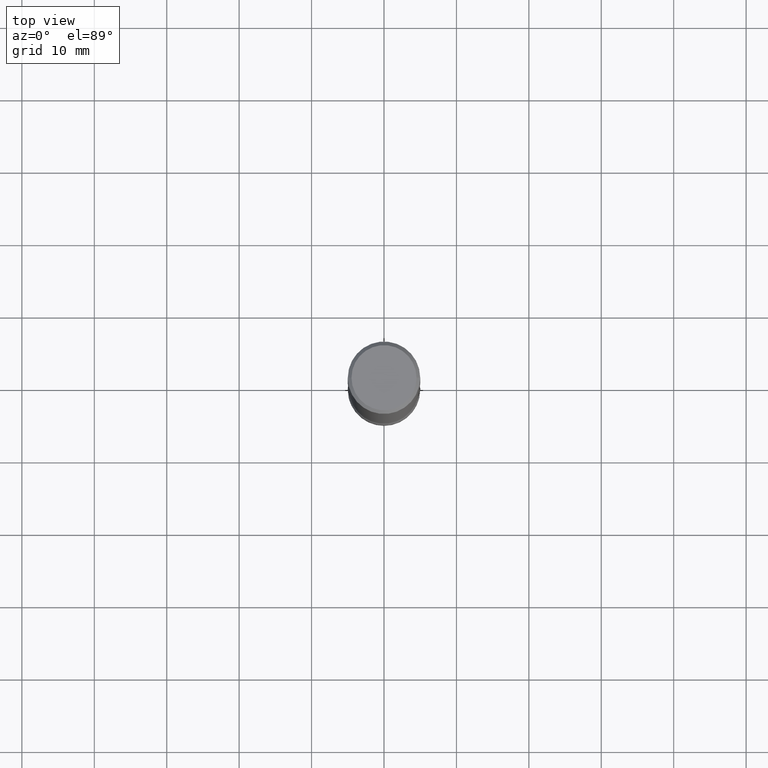
[diagram: clean part render]
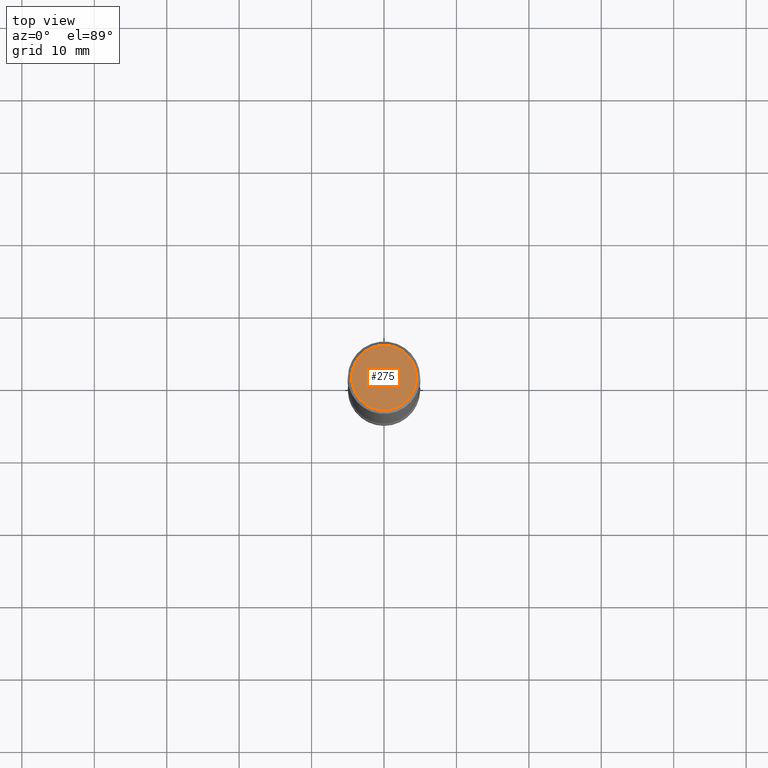
[diagram: same view with one face highlighted and labeled with its STEP entity id]
A machine part, top view. The second image highlights one B-rep face of the part: STEP entity #275.
In plain terms, the highlighted planar face has unit normal (-0, 0, 1).
Its self-contained STEP definition (entity closure, byte-faithful):
#5 = CIRCLE ( 'NONE', #526, 0.1768499999999997851 ) ;
#8 = DIRECTION ( 'NONE',  ( -2.438088387897960049E-29, 3.491481338843145188E-15, 1.000000000000000000 ) ) ;
#42 = CARTESIAN_POINT ( 'NONE',  ( 0.000000000000000000, 0.000000000000000000, 0.000000000000000000 ) ) ;
#57 = EDGE_CURVE ( 'NONE', #495, #530, #387, .T. ) ;
#98 = FACE_OUTER_BOUND ( 'NONE', #186, .T. ) ;
#112 = AXIS2_PLACEMENT_3D ( 'NONE', #155, #328, #499 ) ;
#155 = CARTESIAN_POINT ( 'NONE',  ( 0.000000000000000000, 0.000000000000000000, 0.000000000000000000 ) ) ;
#161 = CARTESIAN_POINT ( 'NONE',  ( -0.1768499999999997851, 1.234936949548814815E-15, -8.623518627995101929E-30 ) ) ;
#185 = DIRECTION ( 'NONE',  ( 1.000000000000000000, -6.982962677686265922E-15, 4.876176775795935793E-29 ) ) ;
#186 = EDGE_LOOP ( 'NONE', ( #502, #450 ) ) ;
#216 = DIRECTION ( 'NONE',  ( 2.445468806185136597E-29, -3.491481338843145583E-15, -1.000000000000000000 ) ) ;
#226 = CARTESIAN_POINT ( 'NONE',  ( 1.234936949548814617E-15, 0.1768499999999997851, -6.153342185293593634E-16 ) ) ;
#275 = ADVANCED_FACE ( 'NONE', ( #98 ), #283, .T. ) ;
#279 = AXIS2_PLACEMENT_3D ( 'NONE', #226, #8, #185 ) ;
#283 = PLANE ( 'NONE',  #279 ) ;
#287 = DIRECTION ( 'NONE',  ( -1.000000000000000000, 6.982962677686266711E-15, -4.876176775795935793E-29 ) ) ;
#328 = DIRECTION ( 'NONE',  ( 2.445468806185136597E-29, -3.491481338843145583E-15, -1.000000000000000000 ) ) ;
#375 = EDGE_CURVE ( 'NONE', #530, #495, #5, .T. ) ;
#387 = CIRCLE ( 'NONE', #112, 0.1768499999999997851 ) ;
#450 = ORIENTED_EDGE ( 'NONE', *, *, #57, .F. ) ;
#495 = VERTEX_POINT ( 'NONE', #505 ) ;
#499 = DIRECTION ( 'NONE',  ( -1.000000000000000000, 6.982962677686266711E-15, -4.876176775795935793E-29 ) ) ;
#502 = ORIENTED_EDGE ( 'NONE', *, *, #375, .F. ) ;
#505 = CARTESIAN_POINT ( 'NONE',  ( 0.1768499999999997851, -1.316798864272040366E-15, 8.922390245354084233E-30 ) ) ;
#526 = AXIS2_PLACEMENT_3D ( 'NONE', #42, #216, #287 ) ;
#530 = VERTEX_POINT ( 'NONE', #161 ) ;